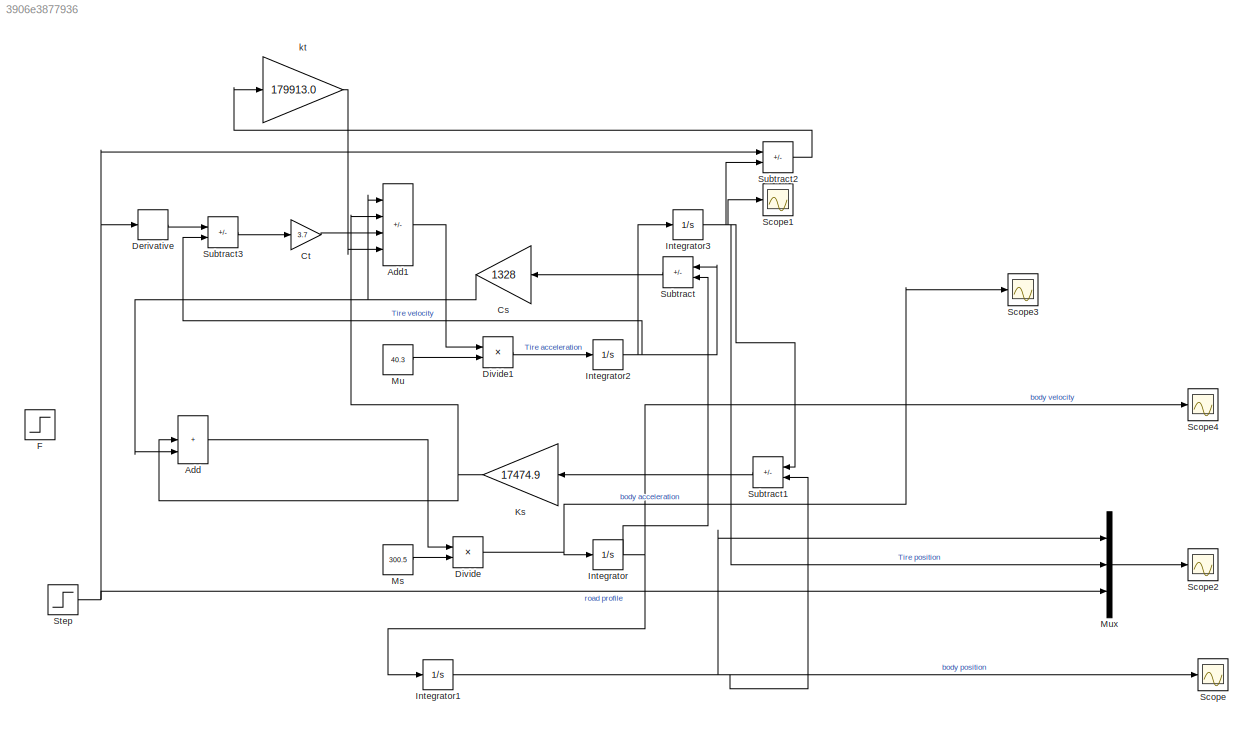
MODEL slx_3906e3877936
KIND model
CONFIG AbsTol = auto
CONFIG EnableMultiTasking = off
CONFIG FixedStep = auto
CONFIG MaxStep = auto
CONFIG MinStep = auto
CONFIG RelTol = 1e-3
CONFIG SampleTimeConstraint = Unconstrained
CONFIG SolverName = VariableStepAuto
CONFIG StartTime = 0.0
CONFIG StopTime = 10.0
BLOCK [Sum] Add
  IconShape = rectangular
  Inputs = +++
BLOCK [Sum] Add1
  IconShape = rectangular
  Inputs = --++
BLOCK [Gain] Cs
  Gain = 1328
BLOCK [Gain] Ct
  Gain = 3.7
BLOCK [Derivative] Derivative
BLOCK [Product] Divide
  Inputs = */
BLOCK [Product] Divide1
  Inputs = */
BLOCK [Step] F
  After = 0
  SampleTime = 0
  Time = 0
BLOCK [Integrator] Integrator
BLOCK [Integrator] Integrator1
BLOCK [Integrator] Integrator2
BLOCK [Integrator] Integrator3
BLOCK [Gain] Ks
  Gain = 17474.9
BLOCK [Constant] Ms
  Value = 300.5
BLOCK [Constant] Mu
  Value = 40.3
BLOCK [Mux] Mux
  DisplayOption = bar
  Inputs = 3
BLOCK [Scope] Scope
  Floating = off
  NumInputPorts = 1
  ScopeSpecificationString = Simulink.scopes.TimeScopeBlockCfg('CurrentConfiguration', extmgr.ConfigurationSet(extmgr.Configuration('Core','General UI',true),extmgr.Configuration('Core','Source UI',true),extmgr.Configuration('Sources','WiredSimulink',true),extmgr.Configuration('Visuals','Time Domain',true,'SerializedDisplays',{struct('MinYLimReal','-0.18981','MaxYLimReal','1.70829','YLabelReal','','MinYLimMag','0.00000','MaxY...<+1361ch>
BLOCK [Scope] Scope1
  Floating = off
  NumInputPorts = 1
  ScopeSpecificationString = Simulink.scopes.TimeScopeBlockCfg('CurrentConfiguration', extmgr.ConfigurationSet(extmgr.Configuration('Core','General UI',true),extmgr.Configuration('Core','Source UI',true),extmgr.Configuration('Sources','WiredSimulink',true,'DataLoggingVariableName','ScopeData1'),extmgr.Configuration('Visuals','Time Domain',true,'SerializedDisplays',{struct('MinYLimReal','-0.12524','MaxYLimReal','0.1253','YLabe...<+1397ch>
BLOCK [Scope] Scope2
  Floating = off
  NumInputPorts = 1
  ScopeSpecificationString = Simulink.scopes.TimeScopeBlockCfg('CurrentConfiguration', extmgr.ConfigurationSet(extmgr.Configuration('Core','General UI',true),extmgr.Configuration('Core','Source UI',true),extmgr.Configuration('Sources','WiredSimulink',true,'DataLoggingVariableName','ScopeData2'),extmgr.Configuration('Visuals','Time Domain',true,'SerializedDisplays',{struct('MinYLimReal','-0.18981','MaxYLimReal','1.70829','YLab...<+1428ch>
BLOCK [Scope] Scope3
  Floating = off
  NumInputPorts = 1
  ScopeSpecificationString = Simulink.scopes.TimeScopeBlockCfg('CurrentConfiguration', extmgr.ConfigurationSet(extmgr.Configuration('Core','General UI',true),extmgr.Configuration('Core','Source UI',true),extmgr.Configuration('Sources','WiredSimulink',true,'DataLoggingVariableName','ScopeData3'),extmgr.Configuration('Visuals','Time Domain',true,'SerializedDisplays',{struct('MinYLimReal','-0.46043','MaxYLimReal','0.85505','YLab...<+1404ch>
BLOCK [Scope] Scope4
  Floating = off
  NumInputPorts = 1
  ScopeSpecificationString = Simulink.scopes.TimeScopeBlockCfg('CurrentConfiguration', extmgr.ConfigurationSet(extmgr.Configuration('Core','General UI',true),extmgr.Configuration('Core','Source UI',true),extmgr.Configuration('Sources','WiredSimulink',true,'DataLoggingVariableName','ScopeData4'),extmgr.Configuration('Visuals','Time Domain',true,'SerializedDisplays',{struct('MinYLimReal','-3.9621','MaxYLimReal','8.49809','YLabe...<+1398ch>
BLOCK [Step] Step
  SampleTime = 0
BLOCK [Sum] Subtract
  IconShape = rectangular
  Inputs = +-
BLOCK [Sum] Subtract1
  IconShape = rectangular
  Inputs = +-
BLOCK [Sum] Subtract2
  IconShape = rectangular
  Inputs = +-
BLOCK [Sum] Subtract3
  IconShape = rectangular
  Inputs = +-
BLOCK [Gain] kt
  Gain = 179913.0
LINE Add1:1 -> Divide1:1
LINE Add:1 -> Divide:1
NET Cs:1 -> Add1:1, Add:3
LINE Ct:1 -> Add1:3
LINE Derivative:1 -> Subtract3:1
LINE Divide1:1 -> Integrator2:1
NET Divide:1 -> Integrator:1, Scope3:1
NET Integrator1:1 -> Mux:1, Scope:1, Subtract1:2
NET Integrator2:1 -> Integrator3:1, Subtract3:2, Subtract:1
NET Integrator3:1 -> Mux:2, Scope1:1, Subtract1:1, Subtract2:2
NET Integrator:1 -> Integrator1:1, Scope4:1, Subtract:2
NET Ks:1 -> Add1:2, Add:2
LINE Ms:1 -> Divide:2
LINE Mu:1 -> Divide1:2
LINE Mux:1 -> Scope2:1
NET Step:1 -> Derivative:1, Mux:3, Subtract2:1
LINE Subtract1:1 -> Ks:1
LINE Subtract2:1 -> kt:1
LINE Subtract3:1 -> Ct:1
LINE Subtract:1 -> Cs:1
LINE kt:1 -> Add1:4
note: NET lines group one-source signal fan-out (src -> all destinations, sorted); 1:1 wires keep LINE
